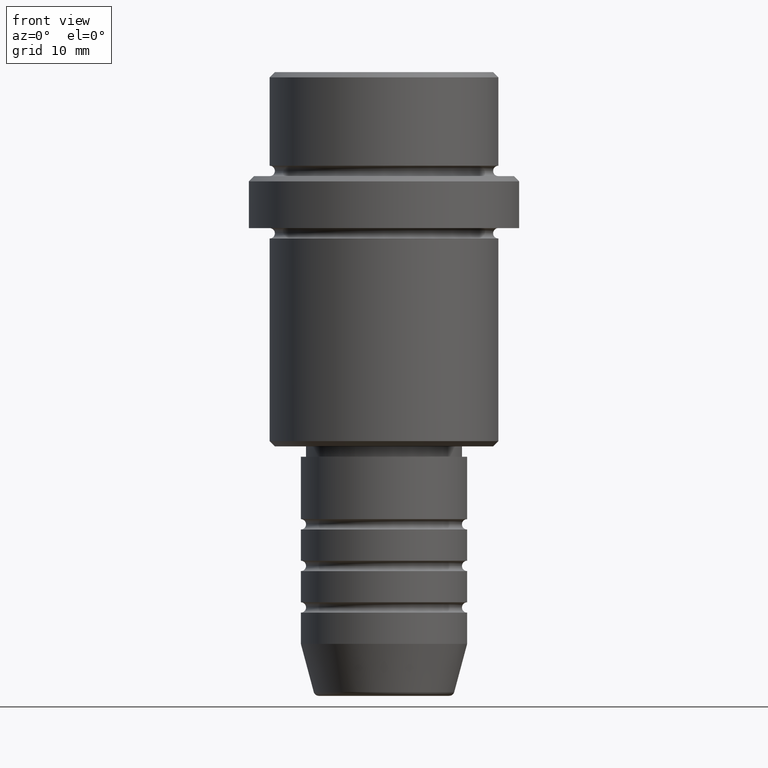
[diagram: clean part render]
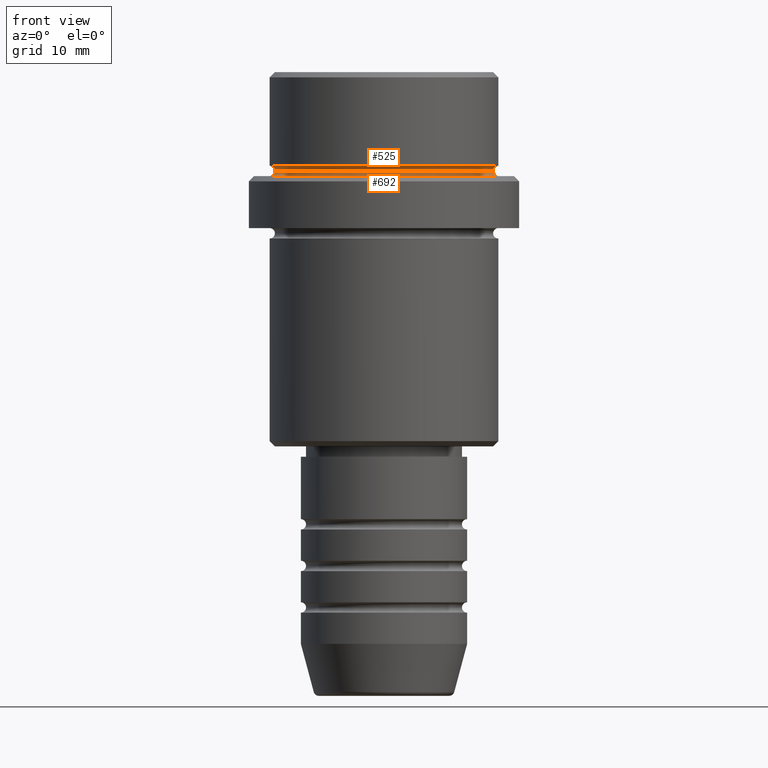
[diagram: same view with one multi-face feature highlighted, each face labeled with its STEP entity id]
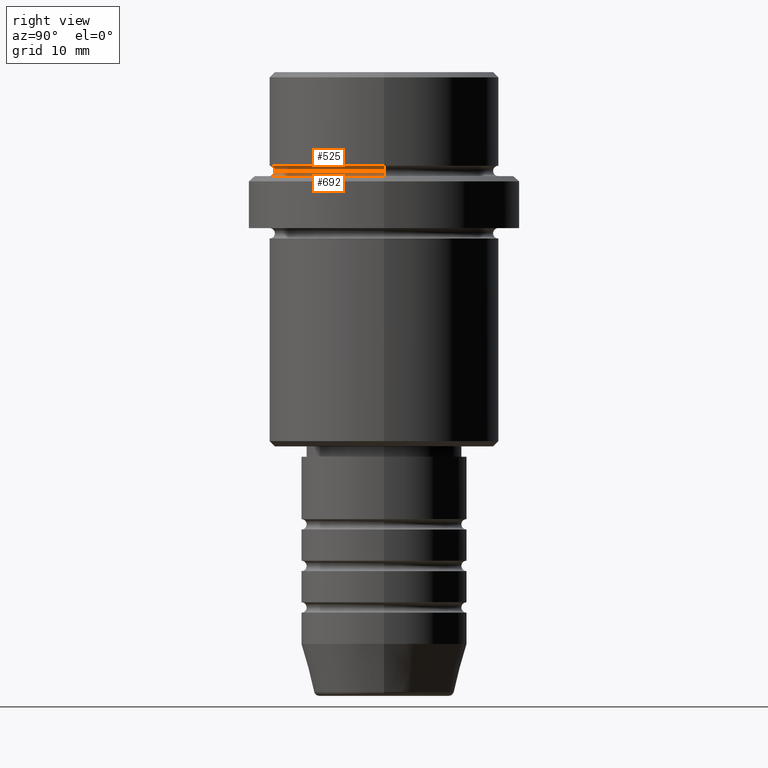
[diagram: same view with one multi-face feature highlighted, each face labeled with its STEP entity id]
A machine part, front view. The highlighted faces form ONE feature: a constant-radius fillet chain: 2 tangent blend faces with common blend radius 0.5 mm. The faces share edges in the B-rep.
A second angle (right view) of the same feature is appended — it is thin or edge-on in the first view.
Their STEP definitions:
[1] entity #525 (Torus):
#16 = EDGE_CURVE ( 'NONE', #239, #1148, #196, .T. ) ;
#120 = DIRECTION ( 'NONE',  ( 1.000000000000000000, 0.000000000000000000, 0.000000000000000000 ) ) ;
#175 = DIRECTION ( 'NONE',  ( -1.000000000000000000, -1.224646799147353454E-16, 0.000000000000000000 ) ) ;
#178 = ORIENTED_EDGE ( 'NONE', *, *, #297, .F. ) ;
#196 = CIRCLE ( 'NONE', #885, 10.99999999999997158 ) ;
#239 = VERTEX_POINT ( 'NONE', #252 ) ;
#242 = CARTESIAN_POINT ( 'NONE',  ( 10.49999999999996625, 0.000000000000000000, -9.500000000000000000 ) ) ;
#252 = CARTESIAN_POINT ( 'NONE',  ( -10.99999999999997158, 1.347111479062085841E-15, -9.000000000000000000 ) ) ;
#284 = VERTEX_POINT ( 'NONE', #766 ) ;
#297 = EDGE_CURVE ( 'NONE', #284, #239, #1185, .T. ) ;
#354 = DIRECTION ( 'NONE',  ( -0.000000000000000000, -0.000000000000000000, 1.000000000000000000 ) ) ;
#360 = CARTESIAN_POINT ( 'NONE',  ( 0.000000000000000000, 0.000000000000000000, -9.500000000000000000 ) ) ;
#440 = ORIENTED_EDGE ( 'NONE', *, *, #778, .T. ) ;
#441 = DIRECTION ( 'NONE',  ( 0.000000000000000000, 0.000000000000000000, -1.000000000000000000 ) ) ;
#456 = AXIS2_PLACEMENT_3D ( 'NONE', #1170, #810, #175 ) ;
#492 = CARTESIAN_POINT ( 'NONE',  ( 0.000000000000000000, 0.000000000000000000, -9.500000000000000000 ) ) ;
#496 = ORIENTED_EDGE ( 'NONE', *, *, #16, .F. ) ;
#520 = TOROIDAL_SURFACE ( 'NONE', #1233, 10.99999999999996625, 0.5000000000000000000 ) ;
#525 = ADVANCED_FACE ( 'NONE', ( #596 ), #520, .F. ) ;
#590 = DIRECTION ( 'NONE',  ( 1.000000000000000000, 0.000000000000000000, 0.000000000000000000 ) ) ;
#596 = FACE_OUTER_BOUND ( 'NONE', #1053, .T. ) ;
#648 = CARTESIAN_POINT ( 'NONE',  ( 0.000000000000000000, 0.000000000000000000, -9.000000000000000000 ) ) ;
#686 = CIRCLE ( 'NONE', #456, 0.5000000000000004441 ) ;
#766 = CARTESIAN_POINT ( 'NONE',  ( -10.49999999999996625, 1.316495309083400673E-15, -9.500000000000000000 ) ) ;
#778 = EDGE_CURVE ( 'NONE', #284, #851, #1301, .T. ) ;
#795 = AXIS2_PLACEMENT_3D ( 'NONE', #360, #354, #590 ) ;
#810 = DIRECTION ( 'NONE',  ( -1.224646799147353207E-16, 1.000000000000000000, 0.000000000000000000 ) ) ;
#851 = VERTEX_POINT ( 'NONE', #242 ) ;
#858 = DIRECTION ( 'NONE',  ( -1.000000000000000000, 0.000000000000000000, 0.000000000000000000 ) ) ;
#885 = AXIS2_PLACEMENT_3D ( 'NONE', #648, #1008, #120 ) ;
#984 = DIRECTION ( 'NONE',  ( -0.000000000000000000, -1.000000000000000000, -0.000000000000000000 ) ) ;
#1008 = DIRECTION ( 'NONE',  ( -0.000000000000000000, -0.000000000000000000, 1.000000000000000000 ) ) ;
#1034 = EDGE_CURVE ( 'NONE', #851, #1148, #686, .T. ) ;
#1053 = EDGE_LOOP ( 'NONE', ( #440, #1262, #496, #178 ) ) ;
#1148 = VERTEX_POINT ( 'NONE', #1305 ) ;
#1170 = CARTESIAN_POINT ( 'NONE',  ( 10.99999999999996625, 1.347111479062084460E-15, -9.500000000000000000 ) ) ;
#1185 = CIRCLE ( 'NONE', #1231, 0.5000000000000004441 ) ;
#1205 = CARTESIAN_POINT ( 'NONE',  ( -10.99999999999996625, 0.000000000000000000, -9.500000000000000000 ) ) ;
#1231 = AXIS2_PLACEMENT_3D ( 'NONE', #1205, #984, #441 ) ;
#1233 = AXIS2_PLACEMENT_3D ( 'NONE', #492, #1273, #858 ) ;
#1262 = ORIENTED_EDGE ( 'NONE', *, *, #1034, .T. ) ;
#1273 = DIRECTION ( 'NONE',  ( 0.000000000000000000, 0.000000000000000000, -1.000000000000000000 ) ) ;
#1301 = CIRCLE ( 'NONE', #795, 10.49999999999996625 ) ;
#1305 = CARTESIAN_POINT ( 'NONE',  ( 10.99999999999997158, 0.000000000000000000, -9.000000000000000000 ) ) ;
[2] entity #692 (Torus):
#158 = CIRCLE ( 'NONE', #345, 10.99999999999996625 ) ;
#195 = DIRECTION ( 'NONE',  ( 1.000000000000000000, 0.000000000000000000, 0.000000000000000000 ) ) ;
#242 = CARTESIAN_POINT ( 'NONE',  ( 10.49999999999996625, 0.000000000000000000, -9.500000000000000000 ) ) ;
#267 = CIRCLE ( 'NONE', #292, 0.5000000000000004441 ) ;
#284 = VERTEX_POINT ( 'NONE', #766 ) ;
#292 = AXIS2_PLACEMENT_3D ( 'NONE', #1379, #850, #1075 ) ;
#311 = DIRECTION ( 'NONE',  ( 1.000000000000000000, 0.000000000000000000, 0.000000000000000000 ) ) ;
#314 = DIRECTION ( 'NONE',  ( -0.000000000000000000, -0.000000000000000000, 1.000000000000000000 ) ) ;
#319 = CARTESIAN_POINT ( 'NONE',  ( -10.99999999999996625, 1.347111479062084460E-15, -10.00000000000000000 ) ) ;
#333 = CARTESIAN_POINT ( 'NONE',  ( 0.000000000000000000, 0.000000000000000000, -10.00000000000000000 ) ) ;
#345 = AXIS2_PLACEMENT_3D ( 'NONE', #333, #350, #311 ) ;
#350 = DIRECTION ( 'NONE',  ( 0.000000000000000000, 0.000000000000000000, -1.000000000000000000 ) ) ;
#354 = DIRECTION ( 'NONE',  ( -0.000000000000000000, -0.000000000000000000, 1.000000000000000000 ) ) ;
#360 = CARTESIAN_POINT ( 'NONE',  ( 0.000000000000000000, 0.000000000000000000, -9.500000000000000000 ) ) ;
#364 = ORIENTED_EDGE ( 'NONE', *, *, #1082, .F. ) ;
#400 = EDGE_CURVE ( 'NONE', #284, #538, #1385, .T. ) ;
#455 = CARTESIAN_POINT ( 'NONE',  ( -10.99999999999996625, 1.347111479062084460E-15, -9.500000000000000000 ) ) ;
#474 = ORIENTED_EDGE ( 'NONE', *, *, #778, .F. ) ;
#526 = VERTEX_POINT ( 'NONE', #1033 ) ;
#530 = CARTESIAN_POINT ( 'NONE',  ( 0.000000000000000000, 0.000000000000000000, -9.500000000000000000 ) ) ;
#538 = VERTEX_POINT ( 'NONE', #319 ) ;
#579 = EDGE_CURVE ( 'NONE', #851, #526, #267, .T. ) ;
#590 = DIRECTION ( 'NONE',  ( 1.000000000000000000, 0.000000000000000000, 0.000000000000000000 ) ) ;
#657 = AXIS2_PLACEMENT_3D ( 'NONE', #530, #314, #195 ) ;
#692 = ADVANCED_FACE ( 'NONE', ( #1079 ), #1275, .F. ) ;
#766 = CARTESIAN_POINT ( 'NONE',  ( -10.49999999999996625, 1.316495309083400673E-15, -9.500000000000000000 ) ) ;
#774 = ORIENTED_EDGE ( 'NONE', *, *, #400, .T. ) ;
#778 = EDGE_CURVE ( 'NONE', #284, #851, #1301, .T. ) ;
#795 = AXIS2_PLACEMENT_3D ( 'NONE', #360, #354, #590 ) ;
#850 = DIRECTION ( 'NONE',  ( 0.000000000000000000, -1.000000000000000000, 0.000000000000000000 ) ) ;
#851 = VERTEX_POINT ( 'NONE', #242 ) ;
#893 = DIRECTION ( 'NONE',  ( 1.224646799147353207E-16, 1.000000000000000000, 0.000000000000000000 ) ) ;
#1033 = CARTESIAN_POINT ( 'NONE',  ( 10.99999999999996625, 0.000000000000000000, -10.00000000000000000 ) ) ;
#1075 = DIRECTION ( 'NONE',  ( 0.000000000000000000, 0.000000000000000000, -1.000000000000000000 ) ) ;
#1079 = FACE_OUTER_BOUND ( 'NONE', #1375, .T. ) ;
#1082 = EDGE_CURVE ( 'NONE', #526, #538, #158, .T. ) ;
#1275 = TOROIDAL_SURFACE ( 'NONE', #657, 10.99999999999996625, 0.5000000000000000000 ) ;
#1301 = CIRCLE ( 'NONE', #795, 10.49999999999996625 ) ;
#1316 = ORIENTED_EDGE ( 'NONE', *, *, #579, .F. ) ;
#1329 = DIRECTION ( 'NONE',  ( -1.000000000000000000, 1.224646799147353454E-16, 0.000000000000000000 ) ) ;
#1375 = EDGE_LOOP ( 'NONE', ( #474, #774, #364, #1316 ) ) ;
#1379 = CARTESIAN_POINT ( 'NONE',  ( 10.99999999999996625, 0.000000000000000000, -9.500000000000000000 ) ) ;
#1385 = CIRCLE ( 'NONE', #1412, 0.5000000000000004441 ) ;
#1412 = AXIS2_PLACEMENT_3D ( 'NONE', #455, #893, #1329 ) ;